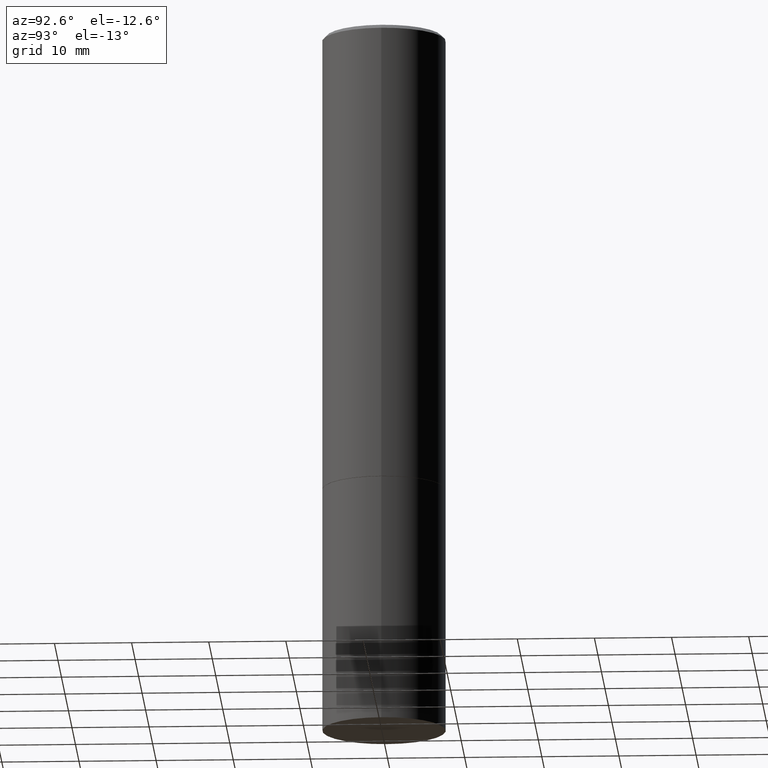
[diagram: clean part render]
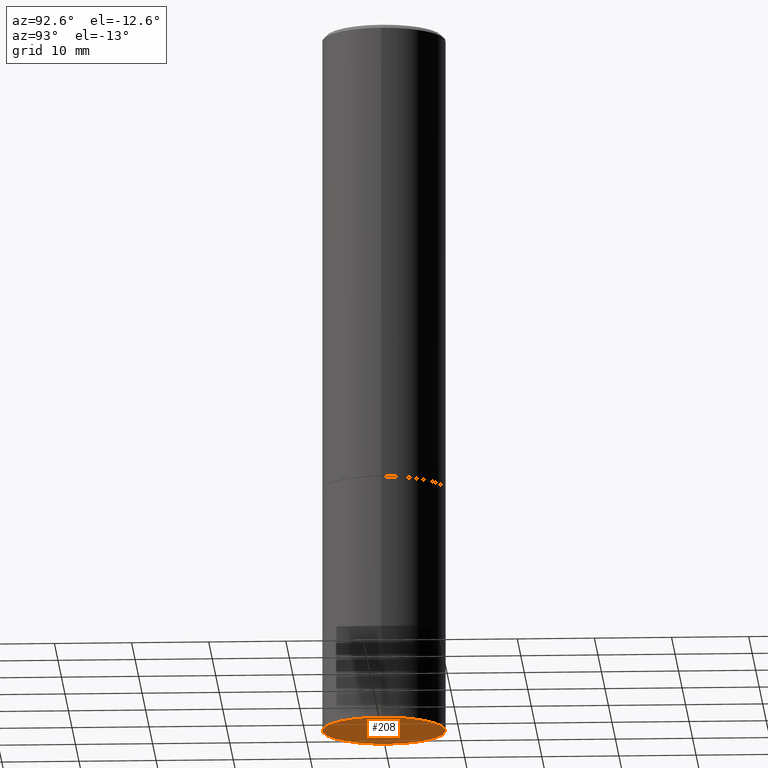
[diagram: same view with one face highlighted and labeled with its STEP entity id]
A machine part, auxiliary view. The second image highlights one B-rep face of the part: STEP entity #208.
In plain terms, the highlighted planar face has unit normal (0, -0, -1).
Its self-contained STEP definition (entity closure, byte-faithful):
#7 = AXIS2_PLACEMENT_3D ( 'NONE', #168, #202, #135 ) ;
#15 = DIRECTION ( 'NONE',  ( -2.445468806185136597E-29, 3.491481338843145583E-15, 1.000000000000000000 ) ) ;
#24 = FACE_OUTER_BOUND ( 'NONE', #210, .T. ) ;
#27 = EDGE_CURVE ( 'NONE', #316, #259, #249, .T. ) ;
#50 = DIRECTION ( 'NONE',  ( -1.000000000000000000, 6.982962677686265922E-15, -4.876176775795935793E-29 ) ) ;
#64 = DIRECTION ( 'NONE',  ( 1.000000000000000000, -6.982962677686263555E-15, 0.000000000000000000 ) ) ;
#78 = DIRECTION ( 'NONE',  ( 2.438088387897960049E-29, -3.491481338843145188E-15, -1.000000000000000000 ) ) ;
#81 = CARTESIAN_POINT ( 'NONE',  ( -0.3149500000000000077, -8.209006967676139823E-15, -3.621999999999999886 ) ) ;
#124 = ORIENTED_EDGE ( 'NONE', *, *, #193, .F. ) ;
#129 = CARTESIAN_POINT ( 'NONE',  ( 8.857488016002564476E-29, -1.264614540928987199E-14, -3.621999999999999886 ) ) ;
#135 = DIRECTION ( 'NONE',  ( 1.000000000000000000, -6.982962677686263555E-15, 0.000000000000000000 ) ) ;
#168 = CARTESIAN_POINT ( 'NONE',  ( 8.857488016002564476E-29, -1.264614540928987199E-14, -3.621999999999999886 ) ) ;
#193 = EDGE_CURVE ( 'NONE', #259, #316, #213, .T. ) ;
#202 = DIRECTION ( 'NONE',  ( -2.445468806185136597E-29, 3.491481338843145583E-15, 1.000000000000000000 ) ) ;
#208 = ADVANCED_FACE ( 'NONE', ( #24 ), #252, .T. ) ;
#210 = EDGE_LOOP ( 'NONE', ( #256, #124 ) ) ;
#213 = CIRCLE ( 'NONE', #7, 0.3149500000000000077 ) ;
#247 = CARTESIAN_POINT ( 'NONE',  ( 0.3149500000000000077, -1.484542950462716186E-14, -3.621999999999999886 ) ) ;
#248 = AXIS2_PLACEMENT_3D ( 'NONE', #362, #78, #50 ) ;
#249 = CIRCLE ( 'NONE', #307, 0.3149500000000000077 ) ;
#252 = PLANE ( 'NONE',  #248 ) ;
#256 = ORIENTED_EDGE ( 'NONE', *, *, #27, .F. ) ;
#259 = VERTEX_POINT ( 'NONE', #81 ) ;
#307 = AXIS2_PLACEMENT_3D ( 'NONE', #129, #15, #64 ) ;
#316 = VERTEX_POINT ( 'NONE', #247 ) ;
#362 = CARTESIAN_POINT ( 'NONE',  ( 2.199284095337378223E-15, 0.3149499999999873512, -3.622000000000000774 ) ) ;